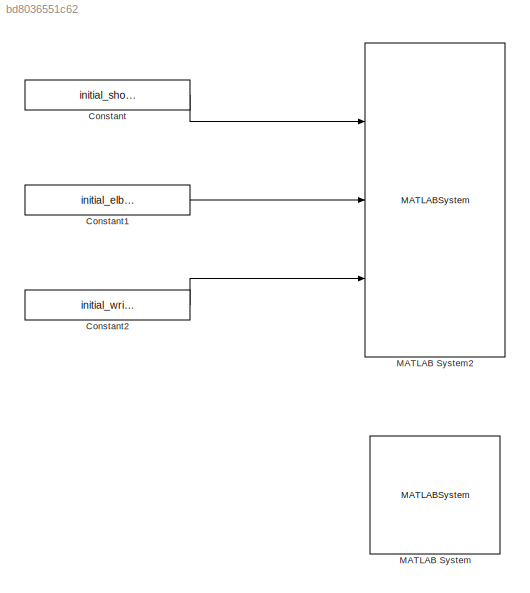
MODEL slx_bd8036551c62
KIND model
CONFIG AbsTol = auto
CONFIG EnableMultiTasking = on
CONFIG FixedStep = 0.5
CONFIG MaxStep = auto
CONFIG MinStep = auto
CONFIG RelTol = 1e-3
CONFIG SampleTimeConstraint = Unconstrained
CONFIG Solver = FixedStepAuto
CONFIG SolverName = FixedStepAuto
CONFIG StartTime = 0.0
CONFIG StopTime = 30
BLOCK [Constant] Constant
  Value = initial_shoulder_angle
BLOCK [Constant] Constant1
  Value = initial_elbow_angle
BLOCK [Constant] Constant2
  Value = initial_wrist_angle
BLOCK [MATLABSystem] MATLAB System
  D_GAIN = 200
  I_GAIN = 0
  MAX_POSITION = 3072
  MIN_POSITION = 1024
  MOVE_TIME = 3000
  MaskDisplay = disp('InitializeForPosition');
  MaskType = InitializeForPosition
  P_GAIN = 400
  Ports = []
  System = InitializeForPosition
BLOCK [MATLABSystem] MATLAB System2
  MaskDisplay = disp('MoveArm_Position');\nport_label('input',1,'u1');\nport_label('input',2,'u2');\nport_label('input',3,'u3');
  MaskType = MoveArm_Position
  Ports = [3]
  System = MoveArm_Position
LINE Constant1:1 -> MATLAB System2:2
LINE Constant2:1 -> MATLAB System2:3
LINE Constant:1 -> MATLAB System2:1
